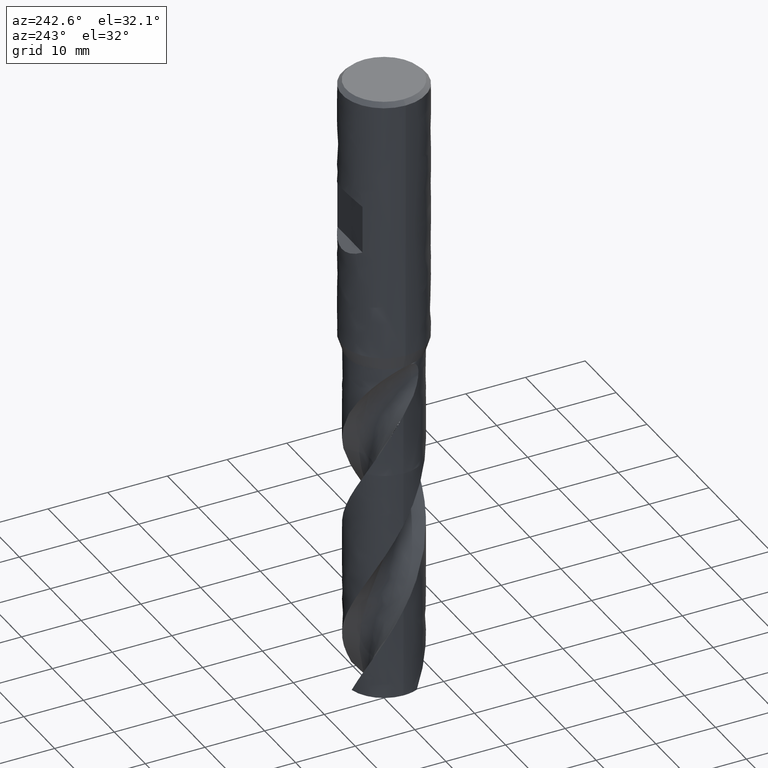
[diagram: clean part render]
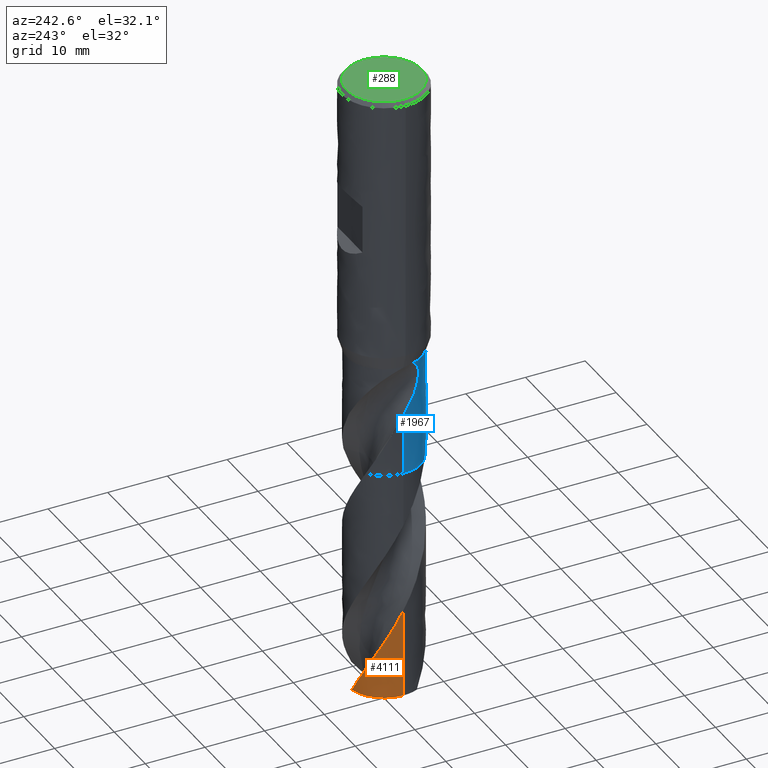
[diagram: same view with three faces highlighted in distinct colors, each labeled with its STEP entity id]
A machine part, auxiliary view with three faces highlighted in distinct colors.
Their STEP definitions:

[orange] entity #4111 — the highlighted face is a freeform B-spline surface patch.
#2295 = VERTEX_POINT('', #2296);
#2296 = CARTESIAN_POINT('', (-1.32876363019772, 6.10711775022095, -104.725186035836));
#2429 = EDGE_CURVE('', #2430, #2295, #2432, .T.);
#2430 = VERTEX_POINT('', #2431);
#2431 = CARTESIAN_POINT('', (-2.56306106294899, 5.7002822726243, -102.428453775909));
#2432 = B_SPLINE_CURVE_WITH_KNOTS('', 3, (#2433, #2434, #2435, #2436, #2437, #2438, #2439, #2440, #2441, #2442), .UNSPECIFIED., .F., .U., (4, 3, 3, 4), (0., 0.996591642597938, 1.99299236130842, 2.63995378599613), .UNSPECIFIED.);
#2433 = CARTESIAN_POINT('', (-2.56306106294907, 5.70028227262427, -102.428453775909));
#2434 = CARTESIAN_POINT('', (-2.41359877592491, 5.76748613199991, -102.717416844768));
#2435 = CARTESIAN_POINT('', (-2.26148082721139, 5.82881176622046, -103.006445135786));
#2436 = CARTESIAN_POINT('', (-2.10723802362136, 5.88405029820481, -103.295431037253));
#2437 = CARTESIAN_POINT('', (-1.95302476938176, 5.9392782477652, -103.584361575712));
#2438 = CARTESIAN_POINT('', (-1.79662747761605, 5.98844296005309, -103.873356995217));
#2439 = CARTESIAN_POINT('', (-1.63858970167535, 6.03137826616461, -104.162309121208));
#2440 = CARTESIAN_POINT('', (-1.53597602149917, 6.05925609311686, -104.349925283648));
#2441 = CARTESIAN_POINT('', (-1.43265081162186, 6.08451436938469, -104.537561128869));
#2442 = CARTESIAN_POINT('', (-1.32876363019773, 6.10711775022095, -104.725186035836));
#3874 = VERTEX_POINT('', #3875);
#3875 = CARTESIAN_POINT('', (-6.25, 5.88199978116436E-15, -89.8103463016379));
#3960 = EDGE_CURVE('', #3874, #3961, #3963, .T.);
#3961 = VERTEX_POINT('', #3962);
#3962 = CARTESIAN_POINT('', (-6.25, 6.79527031817844E-15, -104.725186035836));
#3963 = LINE('', #3964, #3965);
#3964 = CARTESIAN_POINT('', (-6.25, 5.88199978116436E-15, -89.8103463016379));
#3965 = VECTOR('', #3966, 14.9148397341984);
#3966 = DIRECTION('', (0., 9.1327053701409E-16, -14.9148397341984));
#3994 = EDGE_CURVE('', #2430, #3874, #3995, .T.);
#3995 = B_SPLINE_CURVE_WITH_KNOTS('', 3, (#3996, #3997, #3998, #3999, #4000, #4001, #4002, #4003, #4004, #4005, #4006, #4007, #4008, #4009, #4010, #4011, #4012, #4013, #4014, #4015, #4016, #4017, #4018, #4019, #4020, #4021, #4022, #4023, #4024, #4025, #4026, #4027, #4028, #4029, #4030, #4031, #4032, #4033, #4034, #4035, #4036, #4037, #4038, #4039, #4040, #4041), .UNSPECIFIED., .F., .U., (4, 3, 3, 3, 3, 3, 3, 3, 3, 3, 3, 3, 3, 3, 3, 4), (0., 0.998337720202853, 1.99648045820817, 2.99443110192774, 3.9921915411011, 4.98976254585657, 5.98714459171798, 6.98433808432171, 7.98134254338138, 8.97815642442056, 9.97477781247467, 10.9712046793964, 11.9674340819149, 12.9634619399242, 13.9592836261687, 14.5152765436542), .UNSPECIFIED.);
#3996 = CARTESIAN_POINT('', (-2.56306106294899, 5.7002822726243, -102.428453775909));
#3997 = CARTESIAN_POINT('', (-2.71278521525577, 5.6329606687796, -102.138984429532));
#3998 = CARTESIAN_POINT('', (-2.85990504069065, 5.55971303479932, -101.849473969835));
#3999 = CARTESIAN_POINT('', (-3.00390760562833, 5.48078818208187, -101.560032867821));
#4000 = CARTESIAN_POINT('', (-3.14788204587836, 5.40187874392898, -101.270648295638));
#4001 = CARTESIAN_POINT('', (-3.28879239874031, 5.31726583114669, -100.981222183376));
#4002 = CARTESIAN_POINT('', (-3.42614714712108, 5.22723786777244, -100.691865295778));
#4003 = CARTESIAN_POINT('', (-3.56347546134442, 5.1372272304345, -100.402564095411));
#4004 = CARTESIAN_POINT('', (-3.69730086505576, 5.04176985332558, -100.113222377976));
#4005 = CARTESIAN_POINT('', (-3.82715275314111, 4.94119437020286, -99.8239487624993));
#4006 = CARTESIAN_POINT('', (-3.95697989208721, 4.84063805627879, -99.534730281169));
#4007 = CARTESIAN_POINT('', (-4.08288591153113, 4.73492613690791, -99.2454717414304));
#4008 = CARTESIAN_POINT('', (-4.2044266418435, 4.62442392232336, -98.9562813203113));
#4009 = CARTESIAN_POINT('', (-4.325944296479, 4.5139426876473, -98.6671458047758));
#4010 = CARTESIAN_POINT('', (-4.4431446257561, 4.39863100958395, -98.377969083913));
#4011 = CARTESIAN_POINT('', (-4.55561636551566, 4.2788853139861, -98.0888617230781));
#4012 = CARTESIAN_POINT('', (-4.66806680099166, 4.15916230049719, -97.7998091246681));
#4013 = CARTESIAN_POINT('', (-4.77583125989079, 4.03496349817049, -97.5107148380377));
#4014 = CARTESIAN_POINT('', (-4.87853133030003, 3.90671627575911, -97.2216898382074));
#4015 = CARTESIAN_POINT('', (-4.98121198544816, 3.77849329825134, -96.9327194780265));
#4016 = CARTESIAN_POINT('', (-5.07886859797359, 3.64617527067669, -96.6437084003521));
#4017 = CARTESIAN_POINT('', (-5.17115529128111, 3.51022121147021, -96.3547655375067));
#4018 = CARTESIAN_POINT('', (-5.26342449020983, 3.37429292447126, -96.0658774482771));
#4019 = CARTESIAN_POINT('', (-5.35036198967586, 3.23467661908209, -95.7769491065594));
#4020 = CARTESIAN_POINT('', (-5.43165845821425, 3.0918580810428, -95.4880889643252));
#4021 = CARTESIAN_POINT('', (-5.51293938688228, 2.9490668428556, -95.1992840378862));
#4022 = CARTESIAN_POINT('', (-5.58861257076136, 2.80302009751844, -94.9104377795383));
#4023 = CARTESIAN_POINT('', (-5.65840958881477, 2.65422322444988, -94.6216609116291));
#4024 = CARTESIAN_POINT('', (-5.72819312848811, 2.50545508528522, -94.3329398089157));
#4025 = CARTESIAN_POINT('', (-5.7921282498129, 2.35388358531018, -94.044176890435));
#4026 = CARTESIAN_POINT('', (-5.8499874714974, 2.2000333141395, -93.7554833135778));
#4027 = CARTESIAN_POINT('', (-5.90783540018593, 2.04621307155271, -93.4668460840979));
#4028 = CARTESIAN_POINT('', (-5.95963147359003, 1.8900570311358, -93.1781679624894));
#4029 = CARTESIAN_POINT('', (-6.00518911052353, 1.73210962321959, -92.8895581598589));
#4030 = CARTESIAN_POINT('', (-6.05073771918623, 1.57419351613607, -92.6010055517545));
#4031 = CARTESIAN_POINT('', (-6.09006822898199, 1.41442469446007, -92.3124125028385));
#4032 = CARTESIAN_POINT('', (-6.12303719719741, 1.25336167235856, -92.0238877546492));
#4033 = CARTESIAN_POINT('', (-6.15599949554895, 1.09233123448682, -91.7354213771309));
#4034 = CARTESIAN_POINT('', (-6.18261553776178, 0.929945461619552, -91.4469135314475));
#4035 = CARTESIAN_POINT('', (-6.20278690086115, 0.766768975967733, -91.1584751209795));
#4036 = CARTESIAN_POINT('', (-6.2229540886099, 0.603626266865163, -90.8700964155243));
#4037 = CARTESIAN_POINT('', (-6.23668667195726, 0.439633316387352, -90.5816757874697));
#4038 = CARTESIAN_POINT('', (-6.24393118865093, 0.275360330103088, -90.2933245438273));
#4039 = CARTESIAN_POINT('', (-6.24797598906843, 0.183642487270515, -90.1323306114518));
#4040 = CARTESIAN_POINT('', (-6.25, 0.0918221647928623, -89.9713315786627));
#4041 = CARTESIAN_POINT('', (-6.25, 3.98768174539768E-15, -89.8103463016379));
#4111 = ADVANCED_FACE('', (#4112), #4124, .T.);
#4112 = FACE_OUTER_BOUND('', #4113, .T.);
#4113 = EDGE_LOOP('', (#4114, #4115, #4122, #4123));
#4114 = ORIENTED_EDGE('', *, *, #2429, .T.);
#4115 = ORIENTED_EDGE('', *, *, #4116, .F.);
#4116 = EDGE_CURVE('', #3961, #2295, #4117, .T.);
#4117 = CIRCLE('', #4118, 6.25);
#4118 = AXIS2_PLACEMENT_3D('', #4119, #4120, #4121);
#4119 = CARTESIAN_POINT('', (3.92656555620821E-31, 6.4125681934449E-15, -104.725186035836));
#4120 = DIRECTION('', (3.74939945665464E-33, 6.12323399573677E-17, -1.));
#4121 = DIRECTION('', (-1., 6.12323399573677E-17, 0.));
#4122 = ORIENTED_EDGE('', *, *, #3960, .F.);
#4123 = ORIENTED_EDGE('', *, *, #3994, .F.);
#4124 = (
   BOUNDED_SURFACE ()
   B_SPLINE_SURFACE (2, 1, ((#4125, #4126), (#4127, #4128), (#4129, #4130)), .UNSPECIFIED., .F., .F., .U.)
   B_SPLINE_SURFACE_WITH_KNOTS ((3, 3), (2, 2), (0., 8.38818766613336), (0.741623357871222, 1.), .UNSPECIFIED.)
   GEOMETRIC_REPRESENTATION_ITEM ()
   RATIONAL_B_SPLINE_SURFACE (((1., 1.), (0.749747997890153, 0.749747997890153), (0.927133513737826, 0.927133513737826)))
   REPRESENTATION_ITEM ('')
   SURFACE ()
);
#4125 = CARTESIAN_POINT('', (-6.25, 5.88199978116436E-15, -89.8103463016379));
#4126 = CARTESIAN_POINT('', (-6.25, 6.79527031817844E-15, -104.725186035836));
#4127 = CARTESIAN_POINT('', (-6.25, 5.0363737149413, -89.8103463016379));
#4128 = CARTESIAN_POINT('', (-6.25, 5.03637371494131, -104.725186035836));
#4129 = CARTESIAN_POINT('', (-1.32876363019772, 6.10711775022095, -89.8103463016379));
#4130 = CARTESIAN_POINT('', (-1.32876363019772, 6.10711775022095, -104.725186035836));

[blue] entity #1967 — the highlighted face is a freeform B-spline surface patch.
#129 = VERTEX_POINT('', #130);
#130 = CARTESIAN_POINT('', (-6.11766541638923, -1.27932398285782, -47.));
#140 = EDGE_CURVE('', #141, #129, #143, .T.);
#141 = VERTEX_POINT('', #142);
#142 = CARTESIAN_POINT('', (6.20230230466729, 0.770679000310025, -47.));
#143 = CIRCLE('', #144, 6.25);
#144 = AXIS2_PLACEMENT_3D('', #145, #146, #147);
#145 = CARTESIAN_POINT('', (1.76221774462768E-31, 2.87791997799628E-15, -47.));
#146 = DIRECTION('', (3.74939945665464E-33, 6.12323399573677E-17, -1.));
#147 = DIRECTION('', (-1., 6.12323399573677E-17, 0.));
#543 = VERTEX_POINT('', #544);
#544 = CARTESIAN_POINT('', (-4.18466820123788, -4.64231106729703, -65.75));
#553 = VERTEX_POINT('', #554);
#554 = CARTESIAN_POINT('', (4.4135304005075, -4.42529653286603, -50.6848049484776));
#574 = EDGE_CURVE('', #553, #543, #575, .T.);
#575 = B_SPLINE_CURVE_WITH_KNOTS('', 3, (#576, #577, #578, #579, #580, #581, #582, #583, #584, #585, #586, #587, #588, #589, #590, #591, #592, #593, #594, #595, #596, #597, #598, #599, #600, #601, #602, #603, #604, #605, #606, #607, #608, #609, #610, #611, #612, #613, #614, #615, #616, #617, #618, #619, #620, #621, #622, #623, #624, #625, #626, #627, #628, #629, #630, #631, #632, #633, #634, #635, #636, #637, #638, #639, #640, #641, #642, #643, #644, #645, #646, #647, #648, #649, #650, #651, #652, #653, #654, #655, #656, #657, #658, #659, #660, #661, #662, #663, #664, #665, #666, #667, #668, #669, #670, #671, #672, #673, #674, #675, #676, #677, #678, #679, #680, #681, #682, #683, #684, #685, #686, #687, #688, #689, #690, #691, #692, #693, #694, #695, #696), .UNSPECIFIED., .F., .U., (4, 3, 3, 3, 3, 3, 3, 3, 3, 3, 3, 3, 3, 3, 3, 3, 3, 3, 3, 3, 3, 3, 3, 3, 3, 3, 3, 3, 3, 3, 3, 3, 3, 3, 3, 3, 3, 3, 3, 3, 4), (0., 0.442094217102409, 0.884221782139149, 1.32638450955813, 1.76859380647292, 2.21085888108049, 2.65318125785681, 3.09556405156931, 3.53801581026176, 3.98053660197396, 4.42312691282272, 4.86580216289845, 5.30856016175191, 5.60388811504777, 6.26790024671321, 6.71082243623732, 6.90778230081466, 7.35080074715382, 7.79393210363038, 8.08941287020916, 8.22075822196089, 8.5162093299469, 8.5745918552543, 8.87030653031445, 9.16599125973936, 9.46169405667645, 9.59309694629466, 10.2589326032213, 10.9245729907842, 11.5901046126912, 12.2556287494888, 12.9211310634944, 13.3646828253678, 13.6603350629814, 14.3257540164983, 14.7692841419949, 15.2127812983217, 15.8780679946527, 16.3215260503626, 17.3194158393411, 17.8353046004148), .UNSPECIFIED.);
#576 = CARTESIAN_POINT('', (4.4135304005075, -4.42529653286603, -50.6848049484776));
#577 = CARTESIAN_POINT('', (4.34617912555985, -4.49246873190098, -50.7973574595573));
#578 = CARTESIAN_POINT('', (4.27763464695008, -4.55776299801299, -50.9103386371833));
#579 = CARTESIAN_POINT('', (4.20803156785796, -4.62114383285252, -51.0237169749138));
#580 = CARTESIAN_POINT('', (4.13842323848474, -4.68452944861846, -51.1371038649692));
#581 = CARTESIAN_POINT('', (4.06774020091075, -4.74601580462784, -51.2509136801843));
#582 = CARTESIAN_POINT('', (3.99612027712714, -4.80557205031131, -51.3651208724181));
#583 = CARTESIAN_POINT('', (3.92449465741472, -4.86513303249991, -51.4793371475438));
#584 = CARTESIAN_POINT('', (3.85191729997999, -4.92277581902773, -51.5939769480847));
#585 = CARTESIAN_POINT('', (3.77852748705237, -4.97847667761834, -51.7090180155901));
#586 = CARTESIAN_POINT('', (3.70512994455738, -5.03418340273894, -51.8240711994594));
#587 = CARTESIAN_POINT('', (3.63090218520284, -5.0879613905037, -51.9395477224046));
#588 = CARTESIAN_POINT('', (3.55597279838317, -5.13980130522173, -52.0554178385662));
#589 = CARTESIAN_POINT('', (3.48103396040914, -5.19164775872322, -52.171302569906));
#590 = CARTESIAN_POINT('', (3.40537799682252, -5.24156620003254, -52.2876043916214));
#591 = CARTESIAN_POINT('', (3.32913546550851, -5.28955168726929, -52.4042989697678));
#592 = CARTESIAN_POINT('', (3.25288305581467, -5.33754339175594, -52.5210086674722));
#593 = CARTESIAN_POINT('', (3.17602888829222, -5.38361101801696, -52.6381338599589));
#594 = CARTESIAN_POINT('', (3.09870795797394, -5.42775358607859, -52.7556570263625));
#595 = CARTESIAN_POINT('', (3.02137646636833, -5.47190218358583, -52.873196245288));
#596 = CARTESIAN_POINT('', (2.94356414201164, -5.51413341235659, -52.9911559085311));
#597 = CARTESIAN_POINT('', (2.86539195122075, -5.55446027673971, -53.1095095262934));
#598 = CARTESIAN_POINT('', (2.78720757382665, -5.59479342785331, -53.2278815947164));
#599 = CARTESIAN_POINT('', (2.70864901034597, -5.63322890987766, -53.3466689470811));
#600 = CARTESIAN_POINT('', (2.62983824655711, -5.66978401678101, -53.465849877604));
#601 = CARTESIAN_POINT('', (2.55101518641073, -5.70634482715229, -53.5850494031926));
#602 = CARTESIAN_POINT('', (2.47192605213601, -5.74103099839129, -53.7046631042099));
#603 = CARTESIAN_POINT('', (2.39269641735498, -5.77386385831677, -53.8246754487749));
#604 = CARTESIAN_POINT('', (2.31345433575584, -5.80670187621927, -53.9447066470406));
#605 = CARTESIAN_POINT('', (2.23406229202775, -5.83769014876137, -54.0651592787792));
#606 = CARTESIAN_POINT('', (2.15462937601526, -5.86686221518897, -54.1860084983345));
#607 = CARTESIAN_POINT('', (2.07518121572308, -5.89603988014124, -54.3068809105332));
#608 = CARTESIAN_POINT('', (1.99567832828501, -5.92340573742748, -54.4281683514472));
#609 = CARTESIAN_POINT('', (1.91622667999673, -5.94899784088621, -54.549848120355));
#610 = CARTESIAN_POINT('', (1.83676017990279, -5.97459472824754, -54.6715506347227));
#611 = CARTESIAN_POINT('', (1.75733262411586, -5.99842108076966, -54.7936639640027));
#612 = CARTESIAN_POINT('', (1.67805371878272, -6.02051789440739, -54.916171977126));
#613 = CARTESIAN_POINT('', (1.62517319056595, -6.03525688673025, -54.9978871372626));
#614 = CARTESIAN_POINT('', (1.57235481961031, -6.0492276082957, -55.0797848331032));
#615 = CARTESIAN_POINT('', (1.51963212582465, -6.06244325352094, -55.1618617472544));
#616 = CARTESIAN_POINT('', (1.40109099926666, -6.09215716532446, -55.3464025809881));
#617 = CARTESIAN_POINT('', (1.28300751556702, -6.11805860980518, -55.5318909072946));
#618 = CARTESIAN_POINT('', (1.16573125996009, -6.14032333265536, -55.7182797388877));
#619 = CARTESIAN_POINT('', (1.08750338815552, -6.15517477786799, -55.8426084152103));
#620 = CARTESIAN_POINT('', (1.00962092598359, -6.16841137913687, -55.9673584960195));
#621 = CARTESIAN_POINT('', (0.93218115997628, -6.18009209356831, -56.092516111286));
#622 = CARTESIAN_POINT('', (0.897745030591817, -6.18528630597627, -56.14817154589));
#623 = CARTESIAN_POINT('', (0.86339512388465, -6.19017312790374, -56.2039099749167));
#624 = CARTESIAN_POINT('', (0.829139158709331, -6.19475812727945, -56.2597298717377));
#625 = CARTESIAN_POINT('', (0.752087803589929, -6.20507108776127, -56.3852846085748));
#626 = CARTESIAN_POINT('', (0.675499805334314, -6.21385868935194, -56.5112591341371));
#627 = CARTESIAN_POINT('', (0.599433516883806, -6.22118794595026, -56.6376215580651));
#628 = CARTESIAN_POINT('', (0.523347841757299, -6.22851907052354, -56.7640161874209));
#629 = CARTESIAN_POINT('', (0.447774345256118, -6.23439160233685, -56.890813449294));
#630 = CARTESIAN_POINT('', (0.372804706395692, -6.2388714244557, -57.0180056743705));
#631 = CARTESIAN_POINT('', (0.322814819566763, -6.24185857771053, -57.1028176733842));
#632 = CARTESIAN_POINT('', (0.273090974146482, -6.24422667363989, -57.1878111430018));
#633 = CARTESIAN_POINT('', (0.223671342460323, -6.24599640814514, -57.2729906891983));
#634 = CARTESIAN_POINT('', (0.201703621913174, -6.24678307999451, -57.3108541941118));
#635 = CARTESIAN_POINT('', (0.17979579966973, -6.24745155515834, -57.3487551581615));
#636 = CARTESIAN_POINT('', (0.157951837608045, -6.24800377856769, -57.3866943328195));
#637 = CARTESIAN_POINT('', (0.108815551414013, -6.24924596198701, -57.4720355423811));
#638 = CARTESIAN_POINT('', (0.0600040689820087, -6.24990003025336, -57.5575750045428));
#639 = CARTESIAN_POINT('', (0.0115183136429325, -6.24998938626705, -57.6432964326382));
#640 = CARTESIAN_POINT('', (0.00193730087426261, -6.25000704343465, -57.6602353890675));
#641 = CARTESIAN_POINT('', (-0.00763120005205538, -6.25000264693007, -57.6771814654213));
#642 = CARTESIAN_POINT('', (-0.0171874104151881, -6.24997636738917, -57.6941344154668));
#643 = CARTESIAN_POINT('', (-0.0655907918630004, -6.24984325828067, -57.7800031936262));
#644 = CARTESIAN_POINT('', (-0.113675977436482, -6.24914927677481, -57.8660526592271));
#645 = CARTESIAN_POINT('', (-0.161502569347646, -6.24791300516373, -57.952235261038));
#646 = CARTESIAN_POINT('', (-0.209324318084638, -6.24667685874407, -58.0384091355418));
#647 = CARTESIAN_POINT('', (-0.256889489965785, -6.24489885749461, -58.1247193875433));
#648 = CARTESIAN_POINT('', (-0.304308969505601, -6.2425872882226, -58.2110931912392));
#649 = CARTESIAN_POINT('', (-0.351731346564087, -6.24027557770453, -58.2974722727178));
#650 = CARTESIAN_POINT('', (-0.399009945596883, -6.23743049444276, -58.3839176467379));
#651 = CARTESIAN_POINT('', (-0.446303139470653, -6.23404471492615, -58.4703321239901));
#652 = CARTESIAN_POINT('', (-0.467319045977652, -6.23254015962027, -58.5087325454045));
#653 = CARTESIAN_POINT('', (-0.488340895026877, -6.23092839170638, -58.5471256708629));
#654 = CARTESIAN_POINT('', (-0.509376424638821, -6.22920826895538, -58.5855062916167));
#655 = CARTESIAN_POINT('', (-0.615966209069456, -6.220492181621, -58.7799859252618));
#656 = CARTESIAN_POINT('', (-0.722849765057147, -6.20899407018854, -58.9742001937221));
#657 = CARTESIAN_POINT('', (-0.829687900322901, -6.19468465606263, -59.1682118782836));
#658 = CARTESIAN_POINT('', (-0.936494703210342, -6.18037943845302, -59.362166665114));
#659 = CARTESIAN_POINT('', (-1.04327132076312, -6.1632632407959, -59.5559512891967));
#660 = CARTESIAN_POINT('', (-1.14972283269146, -6.14334089954219, -59.749605536905));
#661 = CARTESIAN_POINT('', (-1.2561569504401, -6.12342181359954, -59.9432281415044));
#662 = CARTESIAN_POINT('', (-1.36229947214203, -6.10069422514816, -60.1367431465137));
#663 = CARTESIAN_POINT('', (-1.46802185860786, -6.07514706181254, -60.3300947016226));
#664 = CARTESIAN_POINT('', (-1.57374305603381, -6.04960018580108, -60.5234440821428));
#665 = CARTESIAN_POINT('', (-1.67906259350352, -6.02122942902297, -60.7166615782525));
#666 = CARTESIAN_POINT('', (-1.78385353695397, -5.99002225026726, -60.9096863631159));
#667 = CARTESIAN_POINT('', (-1.88864104426915, -5.95881609480691, -61.1027048186225));
#668 = CARTESIAN_POINT('', (-1.99291212990306, -5.92476809474248, -61.2955661331603));
#669 = CARTESIAN_POINT('', (-2.0964353460717, -5.88790784912104, -61.4882696256064));
#670 = CARTESIAN_POINT('', (-2.16543270935662, -5.86334080172783, -61.6167049019304));
#671 = CARTESIAN_POINT('', (-2.23410379504634, -5.83752284086619, -61.7450827411857));
#672 = CARTESIAN_POINT('', (-2.30237441182046, -5.81047089897147, -61.8734069847538));
#673 = CARTESIAN_POINT('', (-2.34788062405435, -5.79243925567648, -61.9589423224803));
#674 = CARTESIAN_POINT('', (-2.39320975566507, -5.77385917842656, -62.044458207014));
#675 = CARTESIAN_POINT('', (-2.43834329297417, -5.75473561387557, -62.1299538361455));
#676 = CARTESIAN_POINT('', (-2.5399245000273, -5.71169456533235, -62.3223772472659));
#677 = CARTESIAN_POINT('', (-2.64054126004716, -5.66588688872819, -62.5147133651208));
#678 = CARTESIAN_POINT('', (-2.73994687251673, -5.61740074552152, -62.7069779244129));
#679 = CARTESIAN_POINT('', (-2.80620495479808, -5.58508266220328, -62.83513045698));
#680 = CARTESIAN_POINT('', (-2.87192884807009, -5.55157295315119, -62.9632653083648));
#681 = CARTESIAN_POINT('', (-2.93701953762789, -5.51692090169798, -63.0914062504689));
#682 = CARTESIAN_POINT('', (-3.00210538876351, -5.48227142605485, -63.2195376674015));
#683 = CARTESIAN_POINT('', (-3.0665534315979, -5.44648307978205, -63.347691716757));
#684 = CARTESIAN_POINT('', (-3.13032090341247, -5.40958325951814, -63.4758577301475));
#685 = CARTESIAN_POINT('', (-3.22597800076179, -5.35423012101796, -63.6681185877744));
#686 = CARTESIAN_POINT('', (-3.32011962826601, -5.2963669040228, -63.8604330525917));
#687 = CARTESIAN_POINT('', (-3.41264198061713, -5.23606481168153, -64.052739473611));
#688 = CARTESIAN_POINT('', (-3.47431431332662, -5.19586943610531, -64.1809245583813));
#689 = CARTESIAN_POINT('', (-3.53527546473371, -5.1545851033269, -64.3091169382206));
#690 = CARTESIAN_POINT('', (-3.59549510317901, -5.11223189644364, -64.4372979111039));
#691 = CARTESIAN_POINT('', (-3.73100411361824, -5.01692675510022, -64.7257366536968));
#692 = CARTESIAN_POINT('', (-3.86278068250538, -4.91618552902262, -65.0142079053568));
#693 = CARTESIAN_POINT('', (-3.99030992311444, -4.81039777123414, -65.302631054908));
#694 = CARTESIAN_POINT('', (-4.05623995132509, -4.75570764823155, -65.4517399674657));
#695 = CARTESIAN_POINT('', (-4.12105319506264, -4.6996548535285, -65.6008823714379));
#696 = CARTESIAN_POINT('', (-4.18466820123788, -4.64231106729703, -65.75));
#1012 = EDGE_CURVE('', #553, #141, #1013, .T.);
#1013 = B_SPLINE_CURVE_WITH_KNOTS('', 3, (#1014, #1015, #1016, #1017, #1018, #1019, #1020, #1021, #1022, #1023, #1024, #1025, #1026, #1027, #1028, #1029, #1030, #1031, #1032, #1033, #1034, #1035, #1036, #1037, #1038, #1039, #1040, #1041, #1042, #1043, #1044, #1045, #1046, #1047, #1048, #1049, #1050, #1051, #1052, #1053, #1054, #1055, #1056, #1057, #1058, #1059, #1060, #1061, #1062, #1063, #1064, #1065, #1066, #1067, #1068, #1069, #1070, #1071), .UNSPECIFIED., .F., .U., (4, 3, 3, 3, 3, 3, 3, 3, 3, 3, 3, 3, 3, 3, 3, 3, 3, 3, 3, 4), (0., 0.446734204631963, 0.893608201212886, 1.34059086055937, 1.78765542924217, 2.23477143694388, 2.68189389671106, 3.12898972548495, 3.576021889557, 4.02294469107544, 4.46969988965866, 4.91621085393229, 5.21299253070517, 5.50963032721586, 5.80608642164345, 6.10231260077923, 6.14124109199542, 6.43971521926253, 6.73792873965049, 6.9239132154615), .UNSPECIFIED.);
#1014 = CARTESIAN_POINT('', (4.4135304005075, -4.42529653286603, -50.6848049484776));
#1015 = CARTESIAN_POINT('', (4.48158855888353, -4.35741932988893, -50.571071145656));
#1016 = CARTESIAN_POINT('', (4.54935478243784, -4.28670003313998, -50.458810044582));
#1017 = CARTESIAN_POINT('', (4.61651502444886, -4.21310918788464, -50.3481371260454));
#1018 = CARTESIAN_POINT('', (4.68369628222501, -4.13949531460149, -50.2374295757684));
#1019 = CARTESIAN_POINT('', (4.75030285487147, -4.06297291387729, -50.1282532773995));
#1020 = CARTESIAN_POINT('', (4.81600453656129, -3.98354117636821, -50.0207247996651));
#1021 = CARTESIAN_POINT('', (4.88172219440208, -3.90409012408062, -49.9131701750932));
#1022 = CARTESIAN_POINT('', (4.94657005884413, -3.82168520598874, -49.807205710592));
#1023 = CARTESIAN_POINT('', (5.01021186916592, -3.73634541043369, -49.7029650428942));
#1024 = CARTESIAN_POINT('', (5.07386534181586, -3.65098997640616, -49.5987052731491));
#1025 = CARTESIAN_POINT('', (5.13634973088853, -3.56264824920124, -49.4961083475845));
#1026 = CARTESIAN_POINT('', (5.19732210843274, -3.47136038192467, -49.3953298342475));
#1027 = CARTESIAN_POINT('', (5.2583015014273, -3.38006201111313, -49.2945397253866));
#1028 = CARTESIAN_POINT('', (5.31780872931932, -3.28575609298304, -49.1955057797625));
#1029 = CARTESIAN_POINT('', (5.37548818476471, -3.18851482283758, -49.0983989276508));
#1030 = CARTESIAN_POINT('', (5.43316847254806, -3.09127214946112, -49.0012906742479));
#1031 = CARTESIAN_POINT('', (5.48906099135039, -2.99102622850749, -48.9060391498328));
#1032 = CARTESIAN_POINT('', (5.54280408705251, -2.88787514490394, -48.8128474140463));
#1033 = CARTESIAN_POINT('', (5.59654398177024, -2.7847302050665, -48.7196612288387));
#1034 = CARTESIAN_POINT('', (5.64817668653013, -2.6785996278033, -48.6284613021283));
#1035 = CARTESIAN_POINT('', (5.69733440013146, -2.56960711648273, -48.5394968615837));
#1036 = CARTESIAN_POINT('', (5.74648511386615, -2.46063012527056, -48.4505450892284));
#1037 = CARTESIAN_POINT('', (5.79320436768473, -2.34869658129161, -48.3637498441622));
#1038 = CARTESIAN_POINT('', (5.83711561826187, -2.23396089022242, -48.2794188395016));
#1039 = CARTESIAN_POINT('', (5.88101612633124, -2.11925326824798, -48.1951084656921));
#1040 = CARTESIAN_POINT('', (5.92215316018866, -2.00163121657782, -48.1131769308073));
#1041 = CARTESIAN_POINT('', (5.96013908837829, -1.88128733775179, -48.0340077930808));
#1042 = CARTESIAN_POINT('', (5.99811077125969, -1.76098858973416, -47.9548683450006));
#1043 = CARTESIAN_POINT('', (6.03297636416756, -1.63783319373646, -47.8783981785587));
#1044 = CARTESIAN_POINT('', (6.06433538767022, -1.5120635918673, -47.8050816824031));
#1045 = CARTESIAN_POINT('', (6.09567726766907, -1.38636274633714, -47.731805267267));
#1046 = CARTESIAN_POINT('', (6.12355720968166, -1.25788328374149, -47.6615800505255));
#1047 = CARTESIAN_POINT('', (6.14756162900873, -1.12693656322774, -47.595027866012));
#1048 = CARTESIAN_POINT('', (6.16351660523072, -1.03990043110229, -47.5507927396809));
#1049 = CARTESIAN_POINT('', (6.17777325973528, -0.951702086921199, -47.5081449197398));
#1050 = CARTESIAN_POINT('', (6.19020743469681, -0.86245690641582, -47.4673125182342));
#1051 = CARTESIAN_POINT('', (6.20263558154915, -0.773254992125898, -47.4264999123464));
#1052 = CARTESIAN_POINT('', (6.21325261804785, -0.682936165582855, -47.3874680729034));
#1053 = CARTESIAN_POINT('', (6.2219337185424, -0.591642461343934, -47.3504923077719));
#1054 = CARTESIAN_POINT('', (6.23060950152833, -0.500404678017415, -47.3135391917215));
#1055 = CARTESIAN_POINT('', (6.23735929129022, -0.408108740238882, -47.278604977535));
#1056 = CARTESIAN_POINT('', (6.24206029398534, -0.314933780740746, -47.2460248824037));
#1057 = CARTESIAN_POINT('', (6.24675765083736, -0.221831082695167, -47.2134700546298));
#1058 = CARTESIAN_POINT('', (6.24941382749235, -0.127748713153229, -47.1832295407065));
#1059 = CARTESIAN_POINT('', (6.24991330647024, -0.0329190158760446, -47.1557145740298));
#1060 = CARTESIAN_POINT('', (6.24997894537852, -0.02045699429423, -47.1520987013823));
#1061 = CARTESIAN_POINT('', (6.25000738283398, -0.00798103146435215, -47.148529666134));
#1062 = CARTESIAN_POINT('', (6.24999837405117, 0.0045082543968392, -47.1450085181829));
#1063 = CARTESIAN_POINT('', (6.2499293015415, 0.10026662008604, -47.1180110279424));
#1064 = CARTESIAN_POINT('', (6.24765512019086, 0.196894959251554, -47.0937996306797));
#1065 = CARTESIAN_POINT('', (6.2430784320737, 0.294060692674528, -47.0729092495435));
#1066 = CARTESIAN_POINT('', (6.23850574000275, 0.391141587727158, -47.0520371084373));
#1067 = CARTESIAN_POINT('', (6.23162462901183, 0.488926651550538, -47.0344442600769));
#1068 = CARTESIAN_POINT('', (6.22237779835309, 0.586953605119334, -47.0207889143053));
#1069 = CARTESIAN_POINT('', (6.21661090035752, 0.648089302626022, -47.0122725924361));
#1070 = CARTESIAN_POINT('', (6.20991901934195, 0.709380889213629, -47.0052806811945));
#1071 = CARTESIAN_POINT('', (6.20230230466729, 0.770679000310023, -47.));
#1418 = VERTEX_POINT('', #1419);
#1419 = CARTESIAN_POINT('', (-6.25, 3.78871277827928E-15, -55.6243752225887));
#1429 = EDGE_CURVE('', #1418, #129, #1430, .T.);
#1430 = B_SPLINE_CURVE_WITH_KNOTS('', 3, (#1431, #1432, #1433, #1434, #1435, #1436, #1437, #1438, #1439, #1440, #1441, #1442, #1443, #1444, #1445, #1446, #1447, #1448, #1449, #1450, #1451, #1452, #1453, #1454, #1455, #1456, #1457, #1458, #1459, #1460, #1461, #1462, #1463, #1464, #1465, #1466, #1467, #1468, #1469, #1470, #1471, #1472, #1473, #1474, #1475, #1476, #1477, #1478, #1479, #1480, #1481, #1482, #1483, #1484, #1485, #1486, #1487, #1488, #1489, #1490, #1491, #1492, #1493, #1494, #1495, #1496, #1497, #1498, #1499, #1500, #1501, #1502, #1503, #1504, #1505, #1506, #1507, #1508, #1509, #1510, #1511, #1512, #1513, #1514, #1515, #1516, #1517, #1518, #1519, #1520, #1521, #1522, #1523, #1524, #1525, #1526, #1527, #1528, #1529, #1530, #1531, #1532, #1533, #1534, #1535, #1536, #1537, #1538, #1539, #1540, #1541, #1542, #1543, #1544, #1545), .UNSPECIFIED., .F., .U., (4, 3, 3, 3, 3, 3, 3, 3, 3, 3, 3, 3, 3, 3, 3, 3, 3, 3, 3, 3, 3, 3, 3, 3, 3, 3, 3, 3, 3, 3, 3, 3, 3, 3, 3, 3, 3, 3, 4), (0., 0.443686114393299, 0.73930684858525, 1.03486064943114, 1.33034624706411, 1.62576121566667, 1.92110358402381, 2.36376313582618, 2.80614676332265, 3.24826446331607, 3.69013313316284, 4.13177101380663, 4.57322544354037, 5.01455616202188, 5.45583460889616, 5.89718350194193, 6.1919379057546, 6.48680385655618, 6.78183955262128, 7.07711932611842, 7.37273909323599, 7.66882276430903, 7.75647442656098, 7.81489959949221, 8.01262648354651, 8.21062845259971, 8.40893712681392, 8.6075667033146, 8.80649804574087, 8.93875063282904, 9.07103999047852, 9.20333668075587, 9.33560797342751, 9.46782144876378, 9.59994870661652, 9.73196819244588, 9.93029884369091, 10.1281840149828, 10.3072259780299), .UNSPECIFIED.);
#1431 = CARTESIAN_POINT('', (-6.25, 2.80631634275721E-15, -55.6243752225887));
#1432 = CARTESIAN_POINT('', (-6.25, -0.0831701720357858, -55.5020814640229));
#1433 = CARTESIAN_POINT('', (-6.24833588434081, -0.166698762694002, -55.3800200640201));
#1434 = CARTESIAN_POINT('', (-6.24498851611997, -0.250236754953661, -55.2580231793229));
#1435 = CARTESIAN_POINT('', (-6.24275821992868, -0.305896740253157, -55.1767386688247));
#1436 = CARTESIAN_POINT('', (-6.23978146718725, -0.361564821493525, -55.0954767759611));
#1437 = CARTESIAN_POINT('', (-6.23606432518466, -0.417135148554909, -55.0141853161563));
#1438 = CARTESIAN_POINT('', (-6.23234802480352, -0.472692893589723, -54.9329122620611));
#1439 = CARTESIAN_POINT('', (-6.22789151029371, -0.528155205266163, -54.8516043203785));
#1440 = CARTESIAN_POINT('', (-6.22271049572168, -0.583415877771309, -54.7702089986081));
#1441 = CARTESIAN_POINT('', (-6.21753067674193, -0.638663798095966, -54.6888324599575));
#1442 = CARTESIAN_POINT('', (-6.21162641859493, -0.693713465449295, -54.6073637795488));
#1443 = CARTESIAN_POINT('', (-6.20502239941857, -0.748463107116175, -54.5257539275965));
#1444 = CARTESIAN_POINT('', (-6.19841995878098, -0.803199662141481, -54.4441635826007));
#1445 = CARTESIAN_POINT('', (-6.19111770862609, -0.857639757655096, -54.3624271057907));
#1446 = CARTESIAN_POINT('', (-6.18314884997159, -0.911685416739303, -54.2804988987993));
#1447 = CARTESIAN_POINT('', (-6.17518194971851, -0.965717793733806, -54.198590826224));
#1448 = CARTESIAN_POINT('', (-6.16654826153661, -1.01935952527526, -54.1164857611091));
#1449 = CARTESIAN_POINT('', (-6.15728919147527, -1.07251564675853, -54.034141374617));
#1450 = CARTESIAN_POINT('', (-6.1434116844103, -1.15218611544956, -53.9107234938002));
#1451 = CARTESIAN_POINT('', (-6.12812474811498, -1.23077937470504, -53.7867528276073));
#1452 = CARTESIAN_POINT('', (-6.11160556525086, -1.30796690126124, -53.6620887011285));
#1453 = CARTESIAN_POINT('', (-6.09509667933853, -1.38510631428503, -53.5375022819134));
#1454 = CARTESIAN_POINT('', (-6.07735449347555, -1.46085437517895, -53.4121993216227));
#1455 = CARTESIAN_POINT('', (-6.05859812513097, -1.53489047106275, -53.2860578797356));
#1456 = CARTESIAN_POINT('', (-6.03985303169325, -1.60888206205783, -53.1599922645215));
#1457 = CARTESIAN_POINT('', (-6.02009090010887, -1.68118029547256, -53.0330622538123));
#1458 = CARTESIAN_POINT('', (-5.99957119842266, -1.75146950731588, -52.9051676020617));
#1459 = CARTESIAN_POINT('', (-5.97906305479965, -1.82171912759176, -52.7773449891004));
#1460 = CARTESIAN_POINT('', (-5.95779237147656, -1.88998181329477, -52.6485266549288));
#1461 = CARTESIAN_POINT('', (-5.93606283519637, -1.95592893955798, -52.5186304760832));
#1462 = CARTESIAN_POINT('', (-5.91434464831183, -2.02184162145854, -52.3888021423636));
#1463 = CARTESIAN_POINT('', (-5.89216161861872, -2.08546125850673, -52.2578557707599));
#1464 = CARTESIAN_POINT('', (-5.86985913755198, -2.14645142160206, -52.1257408327054));
#1465 = CARTESIAN_POINT('', (-5.84756592065986, -2.20741625013844, -51.9936807735611));
#1466 = CARTESIAN_POINT('', (-5.82514441279851, -2.26577865241606, -51.8604021135324));
#1467 = CARTESIAN_POINT('', (-5.80298419909279, -2.32117952452613, -51.7258910531804));
#1468 = CARTESIAN_POINT('', (-5.78083019546812, -2.37656487133891, -51.5914176876177));
#1469 = CARTESIAN_POINT('', (-5.75892567029299, -2.42901970372652, -51.455647296087));
#1470 = CARTESIAN_POINT('', (-5.73771530624339, -2.47812894428444, -51.3186077926121));
#1471 = CARTESIAN_POINT('', (-5.71650745436839, -2.52723236829973, -51.1815845202193));
#1472 = CARTESIAN_POINT('', (-5.69598028193154, -2.57302283639443, -51.0432058510699));
#1473 = CARTESIAN_POINT('', (-5.6766344556131, -2.61501840478153, -50.9035691522822));
#1474 = CARTESIAN_POINT('', (-5.6572855409059, -2.65702067738688, -50.76391016174));
#1475 = CARTESIAN_POINT('', (-5.63910163564516, -2.69526468665662, -50.6228766630511));
#1476 = CARTESIAN_POINT('', (-5.62265271982356, -2.72915305401891, -50.4806647902365));
#1477 = CARTESIAN_POINT('', (-5.61166732832772, -2.75178536527073, -50.385688737397));
#1478 = CARTESIAN_POINT('', (-5.60145084203768, -2.77248592075621, -50.2901331110913));
#1479 = CARTESIAN_POINT('', (-5.59219371731717, -2.7910337561553, -50.1940933568444));
#1480 = CARTESIAN_POINT('', (-5.58293308932622, -2.80958861080555, -50.0980172572698));
#1481 = CARTESIAN_POINT('', (-5.57462688114206, -2.82600111549989, -50.0013976011454));
#1482 = CARTESIAN_POINT('', (-5.56748297057506, -2.84000587540884, -49.9043744595088));
#1483 = CARTESIAN_POINT('', (-5.56033494747834, -2.85401869742756, -49.807295464632));
#1484 = CARTESIAN_POINT('', (-5.55434512160915, -2.86563265023825, -49.7097367503565));
#1485 = CARTESIAN_POINT('', (-5.54974092093636, -2.87452182292715, -49.6119023565756));
#1486 = CARTESIAN_POINT('', (-5.54513291129573, -2.88341834945992, -49.5139870262575));
#1487 = CARTESIAN_POINT('', (-5.54190858670387, -2.88959531218651, -49.4156965276815));
#1488 = CARTESIAN_POINT('', (-5.54031526388442, -2.89264701904143, -49.3173301601763));
#1489 = CARTESIAN_POINT('', (-5.53872010646727, -2.89570223971936, -49.2188505308076));
#1490 = CARTESIAN_POINT('', (-5.53875924185916, -2.89562834083136, -49.1201629613426));
#1491 = CARTESIAN_POINT('', (-5.54069087658308, -2.89192749047224, -49.0217115073407));
#1492 = CARTESIAN_POINT('', (-5.542625542542, -2.88822083252069, -48.9231055575167));
#1493 = CARTESIAN_POINT('', (-5.54646443096412, -2.88086838076291, -48.8245581260384));
#1494 = CARTESIAN_POINT('', (-5.55245562978469, -2.86927455627241, -48.7267301936438));
#1495 = CARTESIAN_POINT('', (-5.55422924510634, -2.86584235758085, -48.6977695256745));
#1496 = CARTESIAN_POINT('', (-5.55619187028905, -2.86203671550303, -48.6688613145953));
#1497 = CARTESIAN_POINT('', (-5.55834923730908, -2.85784075065521, -48.6400275559966));
#1498 = CARTESIAN_POINT('', (-5.55978725386215, -2.85504388445155, -48.6208080992389));
#1499 = CARTESIAN_POINT('', (-5.5613119630693, -2.85207324076952, -48.601619345581));
#1500 = CARTESIAN_POINT('', (-5.56292492961631, -2.84892369631996, -48.582468455813));
#1501 = CARTESIAN_POINT('', (-5.56838365285875, -2.83826477005652, -48.5176565678765));
#1502 = CARTESIAN_POINT('', (-5.57486025238434, -2.82554675501733, -48.453217406611));
#1503 = CARTESIAN_POINT('', (-5.58240244210036, -2.81056630849228, -48.3894781503977));
#1504 = CARTESIAN_POINT('', (-5.58995512479137, -2.79556502061258, -48.3256502177593));
#1505 = CARTESIAN_POINT('', (-5.5985894188603, -2.77826973982629, -48.262423789312));
#1506 = CARTESIAN_POINT('', (-5.60832160438377, -2.75848305809593, -48.2002156031159));
#1507 = CARTESIAN_POINT('', (-5.61806886506806, -2.73866572678449, -48.1379110564045));
#1508 = CARTESIAN_POINT('', (-5.62893801731769, -2.71630775510255, -48.0765066876968));
#1509 = CARTESIAN_POINT('', (-5.64089460364677, -2.6912465644286, -48.0165186137368));
#1510 = CARTESIAN_POINT('', (-5.65287053807501, -2.66614481983828, -47.9564334673206));
#1511 = CARTESIAN_POINT('', (-5.66596790409596, -2.63826679108725, -47.8976264932465));
#1512 = CARTESIAN_POINT('', (-5.68007874238277, -2.60752861543864, -47.8407073030959));
#1513 = CARTESIAN_POINT('', (-5.69421101841442, -2.57674374113523, -47.7837016390556));
#1514 = CARTESIAN_POINT('', (-5.70940195149186, -2.54299644886948, -47.7284281810803));
#1515 = CARTESIAN_POINT('', (-5.72545042975922, -2.5063354476945, -47.6755557612138));
#1516 = CARTESIAN_POINT('', (-5.73611970260381, -2.48196265559699, -47.6404053709954));
#1517 = CARTESIAN_POINT('', (-5.74718518469636, -2.45626127657034, -47.606252076545));
#1518 = CARTESIAN_POINT('', (-5.75856384141841, -2.42928847284781, -47.5732913371613));
#1519 = CARTESIAN_POINT('', (-5.76994566178061, -2.40230816980028, -47.54032143361));
#1520 = CARTESIAN_POINT('', (-5.78165886096115, -2.3740123637009, -47.5084927677693));
#1521 = CARTESIAN_POINT('', (-5.7936032615561, -2.34449594746694, -47.4779868733453));
#1522 = CARTESIAN_POINT('', (-5.80554832421373, -2.31497789517623, -47.4474792880191));
#1523 = CARTESIAN_POINT('', (-5.8177443012833, -2.28418972936938, -47.4182441632526));
#1524 = CARTESIAN_POINT('', (-5.8300783449603, -2.25226252724385, -47.3904370090225));
#1525 = CARTESIAN_POINT('', (-5.84241002081406, -2.22034145433054, -47.3626351930599));
#1526 = CARTESIAN_POINT('', (-5.85490031936668, -2.187227729672, -47.336213793232));
#1527 = CARTESIAN_POINT('', (-5.86743007822578, -2.15308250588147, -47.311292418243));
#1528 = CARTESIAN_POINT('', (-5.87995436018014, -2.11895220736924, -47.2863819366797));
#1529 = CARTESIAN_POINT('', (-5.89253874691126, -2.08373437597762, -47.2629282468239));
#1530 = CARTESIAN_POINT('', (-5.90506485906009, -2.04761056118945, -47.2410094529176));
#1531 = CARTESIAN_POINT('', (-5.91758280282922, -2.01151030303497, -47.2191049524352));
#1532 = CARTESIAN_POINT('', (-5.93006245925355, -1.9744474502806, -47.1986976057203));
#1533 = CARTESIAN_POINT('', (-5.94239272441051, -1.93661268943318, -47.1798235460301));
#1534 = CARTESIAN_POINT('', (-5.95471293216035, -1.89880878920298, -47.1609648813133));
#1535 = CARTESIAN_POINT('', (-5.96690243478883, -1.86017753428802, -47.143607892623));
#1536 = CARTESIAN_POINT('', (-5.97886224031077, -1.82090810075264, -47.1277508352603));
#1537 = CARTESIAN_POINT('', (-5.99682925482402, -1.76191429178445, -47.10392904491));
#1538 = CARTESIAN_POINT('', (-6.0143197307491, -1.70133175111596, -47.0834382321586));
#1539 = CARTESIAN_POINT('', (-6.0310606675598, -1.63975828225171, -47.0661463332082));
#1540 = CARTESIAN_POINT('', (-6.04776400175235, -1.57832311649822, -47.0488932744184));
#1541 = CARTESIAN_POINT('', (-6.06376606948059, -1.51573952003209, -47.0347740544861));
#1542 = CARTESIAN_POINT('', (-6.07887267652262, -1.45251746379406, -47.0235619614332));
#1543 = CARTESIAN_POINT('', (-6.09254078799417, -1.39531559776827, -47.01341751687));
#1544 = CARTESIAN_POINT('', (-6.10550374893701, -1.33748048846155, -47.0056298494006));
#1545 = CARTESIAN_POINT('', (-6.11766541638923, -1.27932398285782, -47.));
#1896 = VERTEX_POINT('', #1897);
#1897 = CARTESIAN_POINT('', (-6.25, 4.40872847693047E-15, -65.75));
#1904 = EDGE_CURVE('', #1418, #1896, #1905, .T.);
#1905 = LINE('', #1906, #1907);
#1906 = CARTESIAN_POINT('', (-6.25, 3.78871277827928E-15, -55.6243752225887));
#1907 = VECTOR('', #1908, 10.1256247774113);
#1908 = DIRECTION('', (0., 6.20015698651196E-16, -10.1256247774113));
#1967 = ADVANCED_FACE('', (#1968), #1982, .T.);
#1968 = FACE_OUTER_BOUND('', #1969, .T.);
#1969 = EDGE_LOOP('', (#1970, #1977, #1978, #1979, #1980, #1981));
#1970 = ORIENTED_EDGE('', *, *, #1971, .F.);
#1971 = EDGE_CURVE('', #543, #1896, #1972, .T.);
#1972 = CIRCLE('', #1973, 6.25);
#1973 = AXIS2_PLACEMENT_3D('', #1974, #1975, #1976);
#1974 = CARTESIAN_POINT('', (2.46523014275043E-31, 4.02602635219692E-15, -65.75));
#1975 = DIRECTION('', (3.74939945665464E-33, 6.12323399573677E-17, -1.));
#1976 = DIRECTION('', (-1., 6.12323399573677E-17, 0.));
#1977 = ORIENTED_EDGE('', *, *, #574, .F.);
#1978 = ORIENTED_EDGE('', *, *, #1012, .T.);
#1979 = ORIENTED_EDGE('', *, *, #140, .T.);
#1980 = ORIENTED_EDGE('', *, *, #1429, .F.);
#1981 = ORIENTED_EDGE('', *, *, #1904, .T.);
#1982 = (
   BOUNDED_SURFACE ()
   B_SPLINE_SURFACE (2, 1, ((#1983, #1984), (#1985, #1986), (#1987, #1988), (#1989, #1990), (#1991, #1992), (#1993, #1994), (#1995, #1996), (#1997, #1998), (#1999, #2000)), .UNSPECIFIED., .T., .F., .U.)
   B_SPLINE_SURFACE_WITH_KNOTS ((3, 2, 2, 2, 3), (2, 2), (0., 9.81747704246811, 19.6349540849362, 29.4524311274043, 39.2699081698724), (0., 0.324814890823563), .UNSPECIFIED.)
   GEOMETRIC_REPRESENTATION_ITEM ()
   RATIONAL_B_SPLINE_SURFACE (((1., 1.), (0.707106781186548, 0.707106781186548), (1., 1.), (0.707106781186548, 0.707106781186548), (1., 1.), (0.707106781186548, 0.707106781186548), (1., 1.), (0.707106781186548, 0.707106781186548), (1., 1.)))
   REPRESENTATION_ITEM ('')
   SURFACE ()
);
#1983 = CARTESIAN_POINT('', (-6.25, 3.26062210272983E-15, -47.));
#1984 = CARTESIAN_POINT('', (-6.25, 4.40872847693047E-15, -65.75));
#1985 = CARTESIAN_POINT('', (-6.25, 6.25, -47.));
#1986 = CARTESIAN_POINT('', (-6.25, 6.25, -65.75));
#1987 = CARTESIAN_POINT('', (1.4791141972894E-31, 6.25, -47.));
#1988 = CARTESIAN_POINT('', (2.46519032881566E-31, 6.25, -65.75));
#1989 = CARTESIAN_POINT('', (6.25, 6.25, -47.));
#1990 = CARTESIAN_POINT('', (6.25, 6.25, -65.75));
#1991 = CARTESIAN_POINT('', (6.25, 3.26062210272983E-15, -47.));
#1992 = CARTESIAN_POINT('', (6.25, 4.40872847693047E-15, -65.75));
#1993 = CARTESIAN_POINT('', (6.25, -6.25, -47.));
#1994 = CARTESIAN_POINT('', (6.25, -6.25, -65.75));
#1995 = CARTESIAN_POINT('', (7.65404249467096E-16, -6.25, -47.));
#1996 = CARTESIAN_POINT('', (7.65404249467096E-16, -6.25, -65.75));
#1997 = CARTESIAN_POINT('', (-6.25, -6.25, -47.));
#1998 = CARTESIAN_POINT('', (-6.25, -6.25, -65.75));
#1999 = CARTESIAN_POINT('', (-6.25, 3.26062210272983E-15, -47.));
#2000 = CARTESIAN_POINT('', (-6.25, 4.40872847693047E-15, -65.75));

[green] entity #288 — the highlighted planar face has unit normal (-0, -0, 1).
#248 = VERTEX_POINT('', #249);
#249 = CARTESIAN_POINT('', (-6.3, 3.85763741731416E-16, 0.));
#255 = EDGE_CURVE('', #248, #248, #256, .T.);
#256 = CIRCLE('', #257, 6.3);
#257 = AXIS2_PLACEMENT_3D('', #258, #259, #260);
#258 = CARTESIAN_POINT('', (-2.18952885050753E-47, 1.25267077750159E-64, -7.44237865339621E-80));
#259 = DIRECTION('', (3.74939945665464E-33, 6.12323399573677E-17, -1.));
#260 = DIRECTION('', (-1., 6.12323399573677E-17, 0.));
#288 = ADVANCED_FACE('', (#289), #292, .T.);
#289 = FACE_OUTER_BOUND('', #290, .T.);
#290 = EDGE_LOOP('', (#291));
#291 = ORIENTED_EDGE('', *, *, #255, .F.);
#292 = PLANE('', #293);
#293 = AXIS2_PLACEMENT_3D('', #294, #295, #296);
#294 = CARTESIAN_POINT('', (9.80049998724555, -9.80049998724555, 1.04533433621626E-14));
#295 = DIRECTION('', (-1.12784561231762E-15, -6.12323399573676E-17, 1.));
#296 = DIRECTION('', (0., 1., 6.12323399573676E-17));